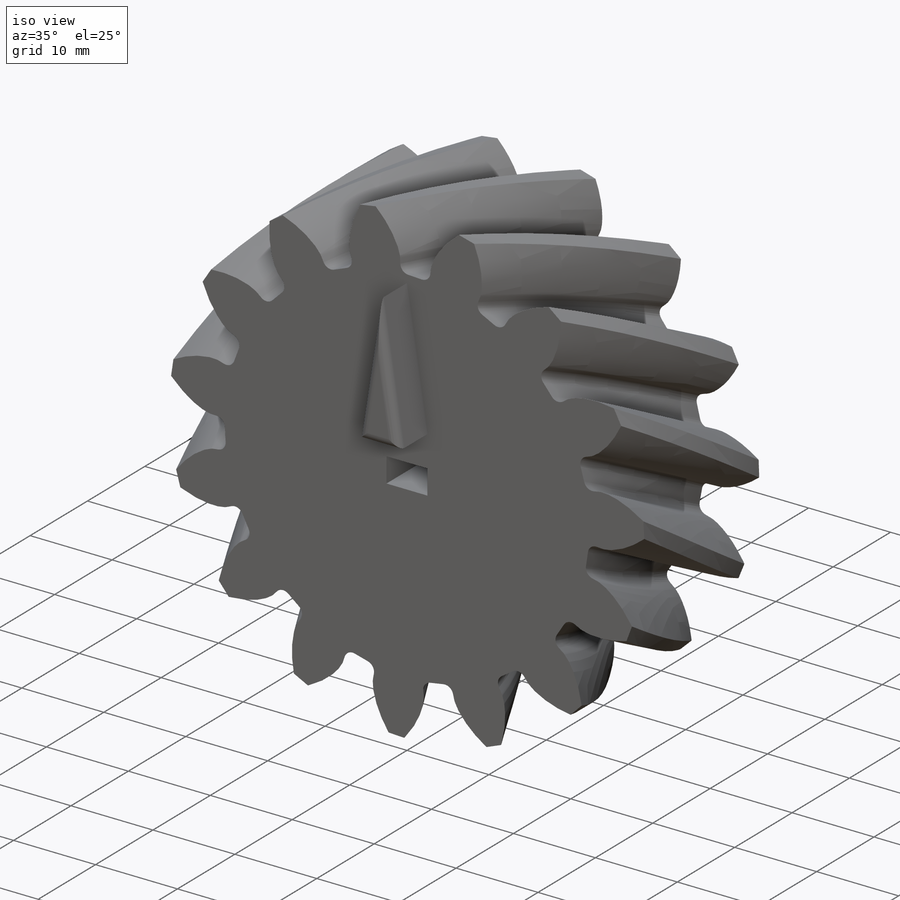
[diagram: iso view]
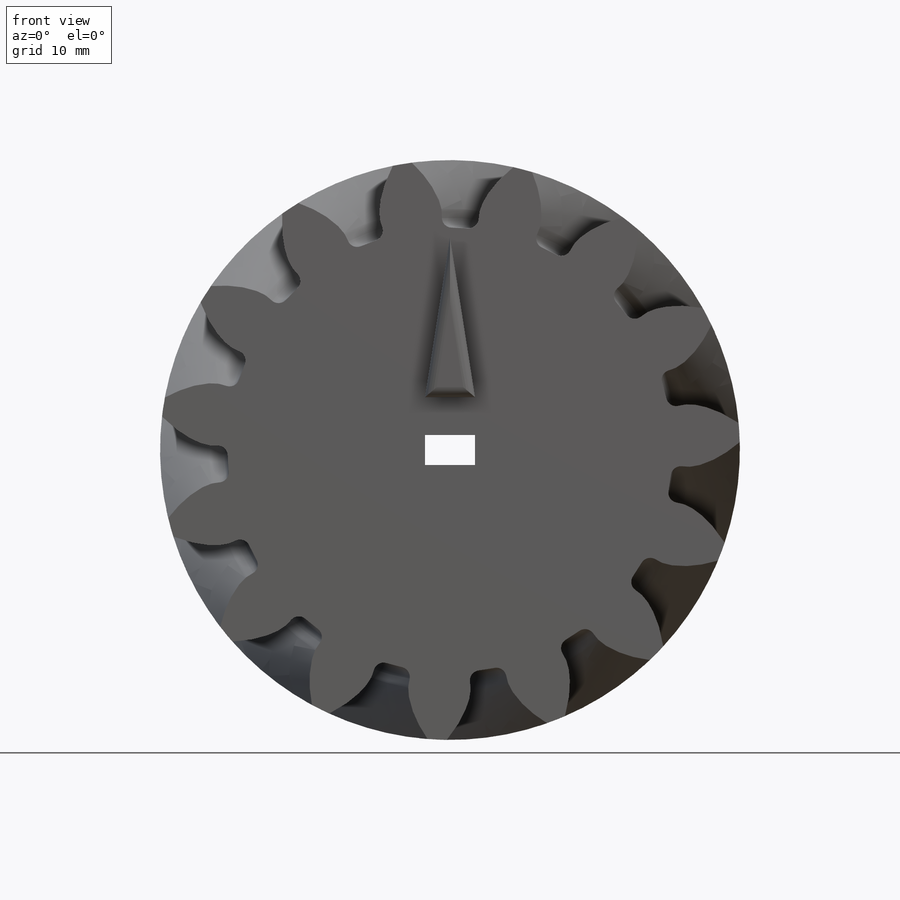
[diagram: front view]
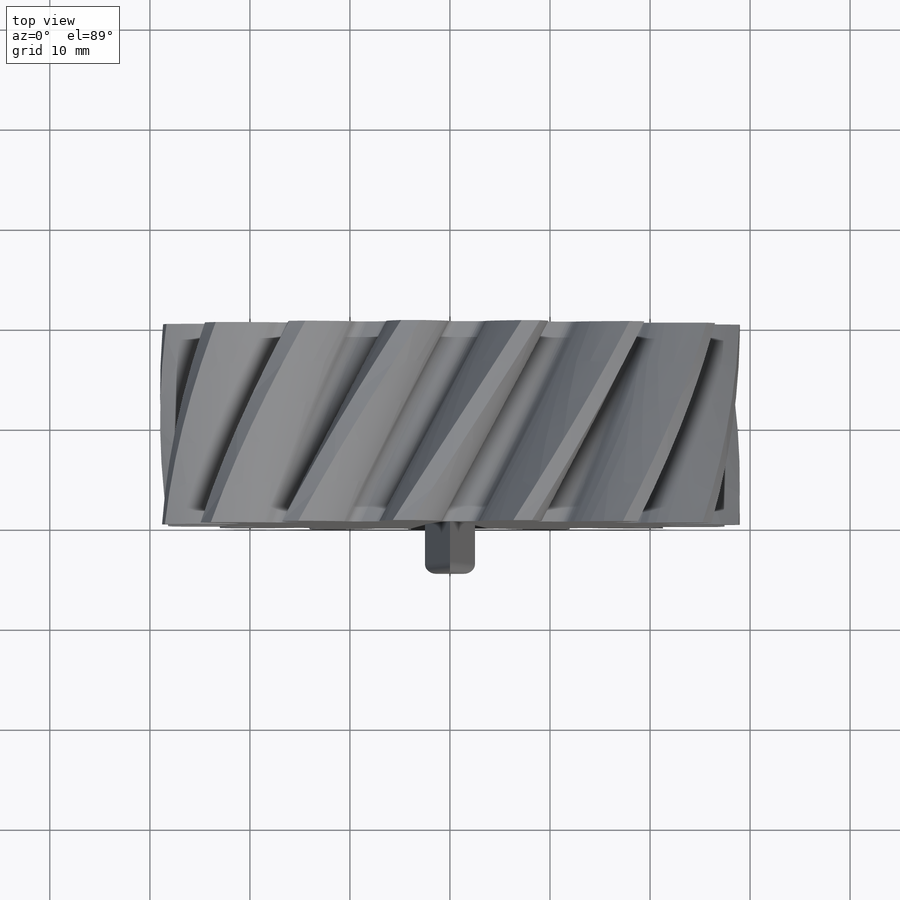
[diagram: top view]
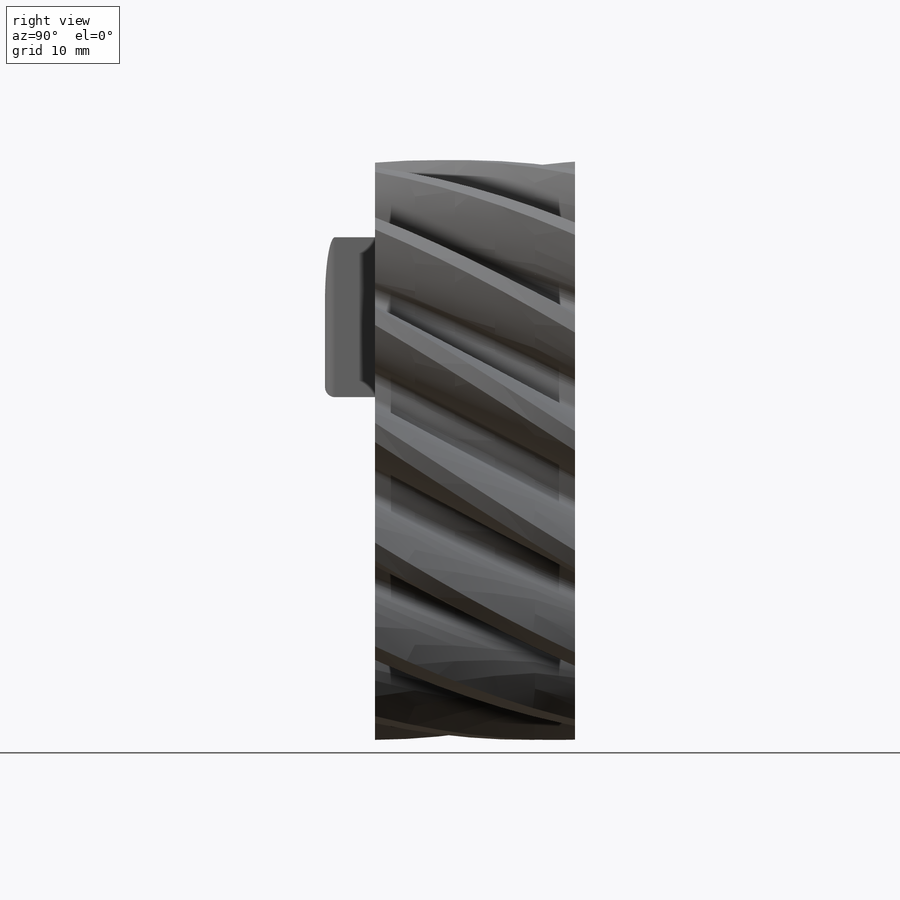
[diagram: right view]
SOLIDWORKS PART (.sldprt)
format: sldprt  version: not decoded by parser v0  size: 729,600 bytes
history: native  units: mm
features: sketch x8, plane x3, extrude x2, material x1, helix x1, cut_extrude x1, sweep x1, pattern_circular x1, fillet x1 (+13 scaffold rows collapsed)
feature tree (32):
  scaffold x13  (default folders/planes/origin — collapsed)
  material  "Material <not specified>"
  sketch  "Sketch1"  dims[c1.D1=51.9615mm c1.D7=57.9615mm c1.D5=44.4615mm c1.D2=~39.591012mm c2.D2=22.7959deg c2.D3=~31.577406mm c3.D3=10.0deg c3.D4=~32.835435mm c4.D4=10.0deg c4.D5=~30.481362mm c5.D5=10.0deg c5.D6=~31.501528mm c6.D6=10.0deg c6.D8=~23.951416mm c7.D8=10.0deg c7.D3=~18.949887mm c8.D3=~37.704057deg c8.D4=~35.295704mm c9.D4=~6.50835deg c9.D3=~25.98075mm c10.D3=~39.172182deg c10.D4=~25.98075mm c11.D4=6.0deg]
  extrude  "Boss-Extrude1"  Depth=20mm
  sketch  "Sketch5"  dims[D1=~51.96152mm]
  helix  "Helix/Spiral1"  Pitch=20mm
  plane  "Plane1"
  sketch  "Sketch7"  dims[D1=6.0mm D2=5.0mm D3=3.0mm D4=1.5mm D5=2.5mm]
  cut_extrude  "Cut-Extrude1"  Depth=20mm
  sketch  "Sketch8"  dims[c1.D1=~51.96152mm c1.D4=~57.96152mm c1.D5=2.0mm c1.D6=2.0mm c1.D7=1.0mm c1.D8=1.0mm c1.D2=~53.024997mm c2.D2=~22.79588deg c2.D3=~35.990228mm c3.D3=20.0deg c3.D4=~22.032081mm c4.D4=10.0deg c4.D5=~29.928631mm c5.D5=10.0deg c5.D6=~30.143133mm c6.D6=10.0deg c6.D7=~27.419186mm c7.D7=10.0deg c7.D3=~30.292611mm c8.D3=6.0deg]
  plane  "Plane2"
  sketch  "Sketch10"
  sketch  "Sketch11"
  plane  "Plane3"
  sketch  "Sketch12"  dims[c1.D1=~22.921263mm c2.D1=~30.000243deg]
  sweep  "Sweep2"
  pattern_circular  "CirPattern1"  Count=15 Angle=360deg
  sketch  "Sketch13"
  extrude  "Boss-Extrude2"  Depth=5mm
  fillet  "Fillet1"  Radius=1mm
decode coverage: 11 of 15 modeling features carry decoded parameters
note: ~ marks probable driven/reference dimensions
note: suppression state not decoded; provenance and decode notes live in map.json
